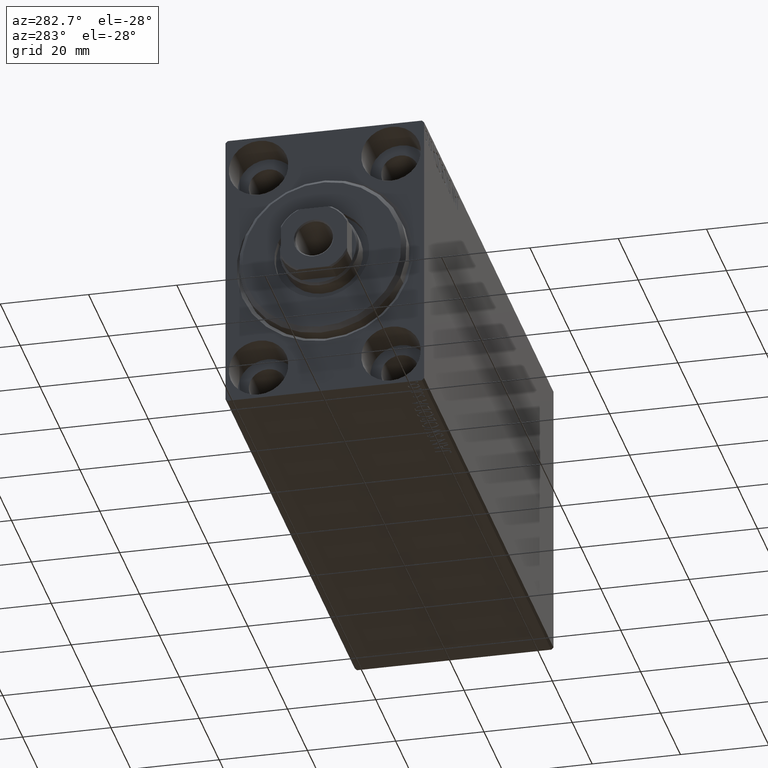
[diagram: clean part render]
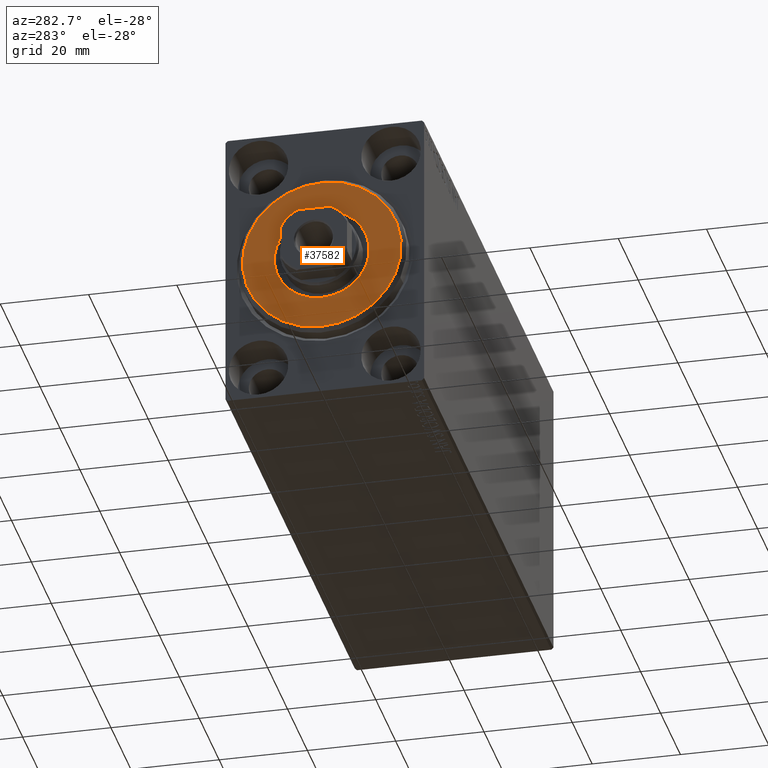
[diagram: same view with one face highlighted and labeled with its STEP entity id]
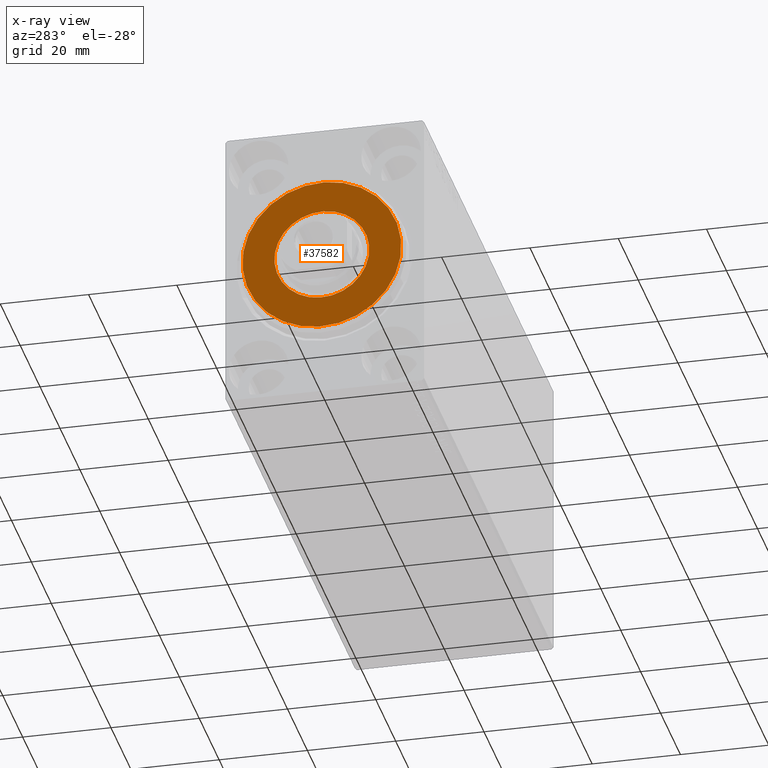
[diagram: x-ray of the same camera — body ghosted, the highlighted face saturated]
A machine part, auxiliary view. The second image highlights one B-rep face of the part: STEP entity #37582.
The next image is the same camera in x-ray: the body ghosted, the highlighted face saturated — about 0% of this face is hidden behind the body in this view.
In plain terms, the highlighted planar face has unit normal (-1, 0, 0).
Its self-contained STEP definition (entity closure, byte-faithful):
#1243 = EDGE_LOOP ( 'NONE', ( #38968, #9796 ) ) ;
#2658 = DIRECTION ( 'NONE',  ( 0.000000000000000000, 0.000000000000000000, -1.000000000000000000 ) ) ;
#3703 = CARTESIAN_POINT ( 'NONE',  ( 3.000000000000000000, 0.000000000000000000, 0.000000000000000000 ) ) ;
#8181 = FACE_OUTER_BOUND ( 'NONE', #1243, .T. ) ;
#9796 = ORIENTED_EDGE ( 'NONE', *, *, #12240, .T. ) ;
#11209 = EDGE_CURVE ( 'NONE', #34446, #38480, #42858, .T. ) ;
#12240 = EDGE_CURVE ( 'NONE', #38480, #34446, #25220, .T. ) ;
#13947 = FACE_BOUND ( 'NONE', #41689, .T. ) ;
#14349 = VERTEX_POINT ( 'NONE', #17006 ) ;
#15666 = AXIS2_PLACEMENT_3D ( 'NONE', #35191, #19235, #36065 ) ;
#16034 = CARTESIAN_POINT ( 'NONE',  ( 3.000000000000000000, 2.265596578422603002E-15, -17.99999999999999645 ) ) ;
#17006 = CARTESIAN_POINT ( 'NONE',  ( 3.000000000000000000, 0.000000000000000000, 10.75000000000000000 ) ) ;
#17087 = DIRECTION ( 'NONE',  ( 1.000000000000000000, -0.000000000000000000, 0.000000000000000000 ) ) ;
#19235 = DIRECTION ( 'NONE',  ( 1.000000000000000000, -0.000000000000000000, 0.000000000000000000 ) ) ;
#20533 = DIRECTION ( 'NONE',  ( 0.000000000000000000, 0.000000000000000000, -1.000000000000000000 ) ) ;
#20858 = CARTESIAN_POINT ( 'NONE',  ( 3.000000000000000000, 1.316495309083404223E-15, -10.75000000000000000 ) ) ;
#23420 = DIRECTION ( 'NONE',  ( -1.000000000000000000, 0.000000000000000000, -0.000000000000000000 ) ) ;
#23507 = ORIENTED_EDGE ( 'NONE', *, *, #28944, .T. ) ;
#23764 = AXIS2_PLACEMENT_3D ( 'NONE', #33488, #17087, #36376 ) ;
#24614 = DIRECTION ( 'NONE',  ( 0.000000000000000000, 0.000000000000000000, -1.000000000000000000 ) ) ;
#24835 = DIRECTION ( 'NONE',  ( 1.000000000000000000, -0.000000000000000000, 0.000000000000000000 ) ) ;
#25220 = CIRCLE ( 'NONE', #42199, 17.99999999999999645 ) ;
#26348 = CARTESIAN_POINT ( 'NONE',  ( 3.000000000000000000, 0.000000000000000000, 0.000000000000000000 ) ) ;
#28944 = EDGE_CURVE ( 'NONE', #37300, #14349, #39625, .T. ) ;
#31845 = AXIS2_PLACEMENT_3D ( 'NONE', #26348, #36320, #2658 ) ;
#33488 = CARTESIAN_POINT ( 'NONE',  ( 3.000000000000000000, 0.000000000000000000, 0.000000000000000000 ) ) ;
#33496 = ORIENTED_EDGE ( 'NONE', *, *, #35887, .T. ) ;
#34446 = VERTEX_POINT ( 'NONE', #39919 ) ;
#35191 = CARTESIAN_POINT ( 'NONE',  ( 3.000000000000000000, 0.000000000000000000, 0.000000000000000000 ) ) ;
#35887 = EDGE_CURVE ( 'NONE', #14349, #37300, #43278, .T. ) ;
#36065 = DIRECTION ( 'NONE',  ( 0.000000000000000000, 0.000000000000000000, -1.000000000000000000 ) ) ;
#36320 = DIRECTION ( 'NONE',  ( -1.000000000000000000, 0.000000000000000000, -0.000000000000000000 ) ) ;
#36376 = DIRECTION ( 'NONE',  ( 0.000000000000000000, 0.000000000000000000, -1.000000000000000000 ) ) ;
#36885 = AXIS2_PLACEMENT_3D ( 'NONE', #3703, #23420, #20533 ) ;
#37300 = VERTEX_POINT ( 'NONE', #20858 ) ;
#37582 = ADVANCED_FACE ( 'NONE', ( #8181, #13947 ), #37644, .T. ) ;
#37644 = PLANE ( 'NONE',  #15666 ) ;
#38480 = VERTEX_POINT ( 'NONE', #16034 ) ;
#38562 = CARTESIAN_POINT ( 'NONE',  ( 3.000000000000000000, 0.000000000000000000, 0.000000000000000000 ) ) ;
#38968 = ORIENTED_EDGE ( 'NONE', *, *, #11209, .T. ) ;
#39625 = CIRCLE ( 'NONE', #31845, 10.75000000000000000 ) ;
#39919 = CARTESIAN_POINT ( 'NONE',  ( 3.000000000000000000, 0.000000000000000000, 17.99999999999999645 ) ) ;
#41689 = EDGE_LOOP ( 'NONE', ( #33496, #23507 ) ) ;
#42199 = AXIS2_PLACEMENT_3D ( 'NONE', #38562, #24835, #24614 ) ;
#42858 = CIRCLE ( 'NONE', #23764, 17.99999999999999645 ) ;
#43278 = CIRCLE ( 'NONE', #36885, 10.75000000000000000 ) ;